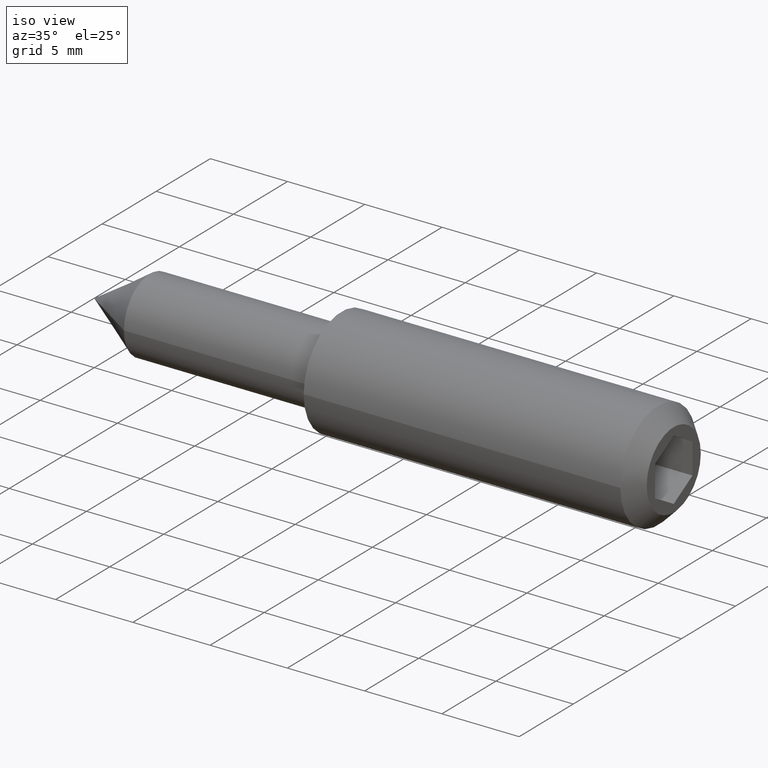
[diagram: clean part render]
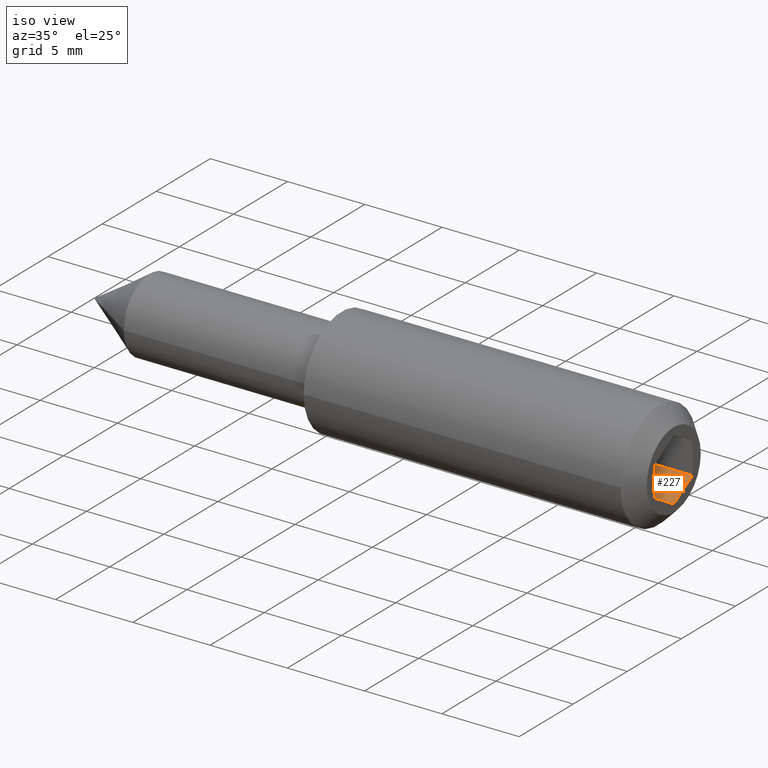
[diagram: same view with one face highlighted and labeled with its STEP entity id]
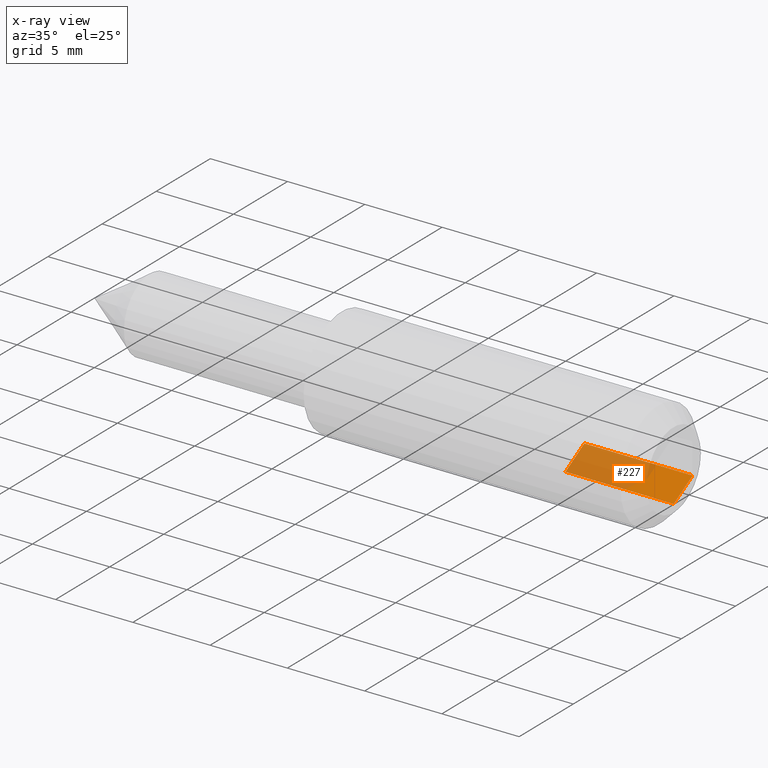
[diagram: x-ray of the same camera — body ghosted, the highlighted face saturated]
A machine part, iso view. The second image highlights one B-rep face of the part: STEP entity #227.
The next image is the same camera in x-ray: the body ghosted, the highlighted face saturated — about 64% of this face is hidden behind the body in this view.
In plain terms, the highlighted planar face has unit normal (0, 0.5, -0.866).
Its self-contained STEP definition (entity closure, byte-faithful):
#31=FACE_OUTER_BOUND('',#44,.T.);
#44=EDGE_LOOP('',(#159,#160,#161,#162));
#59=LINE('',#355,#81);
#62=LINE('',#361,#84);
#63=LINE('',#363,#85);
#64=LINE('',#364,#86);
#81=VECTOR('',#286,10.);
#84=VECTOR('',#291,10.);
#85=VECTOR('',#292,10.);
#86=VECTOR('',#293,10.);
#102=VERTEX_POINT('',#351);
#104=VERTEX_POINT('',#354);
#106=VERTEX_POINT('',#360);
#107=VERTEX_POINT('',#362);
#125=EDGE_CURVE('',#102,#104,#59,.T.);
#128=EDGE_CURVE('',#106,#102,#62,.T.);
#129=EDGE_CURVE('',#106,#107,#63,.T.);
#130=EDGE_CURVE('',#107,#104,#64,.T.);
#159=ORIENTED_EDGE('',*,*,#128,.F.);
#160=ORIENTED_EDGE('',*,*,#129,.T.);
#161=ORIENTED_EDGE('',*,*,#130,.T.);
#162=ORIENTED_EDGE('',*,*,#125,.F.);
#218=PLANE('',#260);
#227=ADVANCED_FACE('',(#31),#218,.F.);
#260=AXIS2_PLACEMENT_3D('',#359,#289,#290);
#286=DIRECTION('',(-1.,0.,0.));
#289=DIRECTION('center_axis',(0.,0.500000000000001,-0.866025403784438));
#290=DIRECTION('ref_axis',(0.,-0.866025403784438,-0.5));
#291=DIRECTION('',(0.,-0.866025403784438,-0.5));
#292=DIRECTION('',(-1.,0.,0.));
#293=DIRECTION('',(0.,-0.866025403784438,-0.5));
#351=CARTESIAN_POINT('',(37.5,2.06871506404621E-15,-2.));
#354=CARTESIAN_POINT('',(30.5,1.94289029309402E-15,-2.));
#355=CARTESIAN_POINT('',(37.5,2.06871506404621E-15,-2.));
#359=CARTESIAN_POINT('Origin',(37.5,1.73205080756888,-1.));
#360=CARTESIAN_POINT('',(37.5,1.73205080756888,-1.));
#361=CARTESIAN_POINT('',(37.5,1.95528810567666,-0.871113885844307));
#362=CARTESIAN_POINT('',(30.5,1.73205080756888,-1.));
#363=CARTESIAN_POINT('',(37.5,1.73205080756888,-1.));
#364=CARTESIAN_POINT('',(30.5,1.73205080756888,-1.));